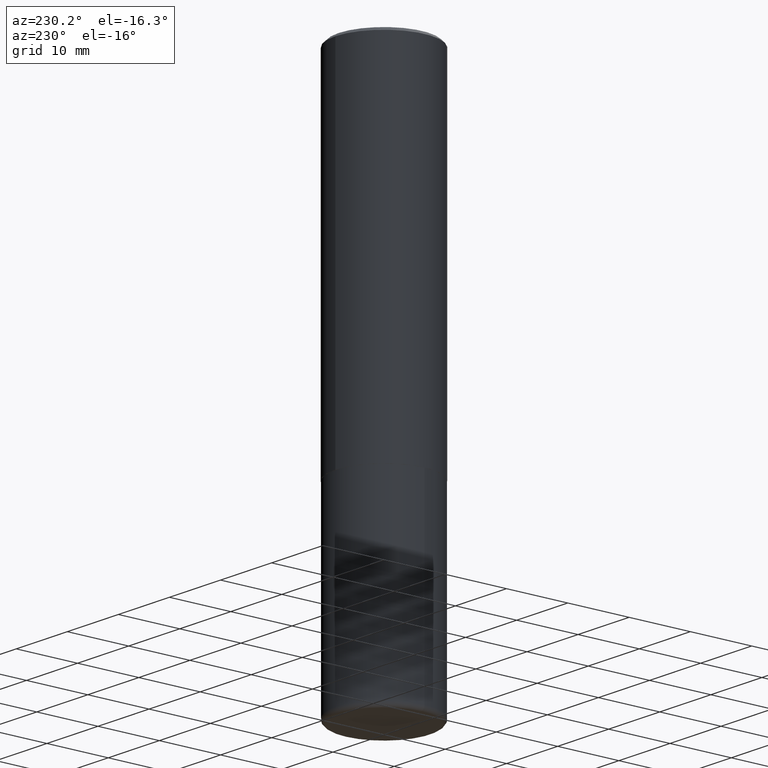
[diagram: clean part render]
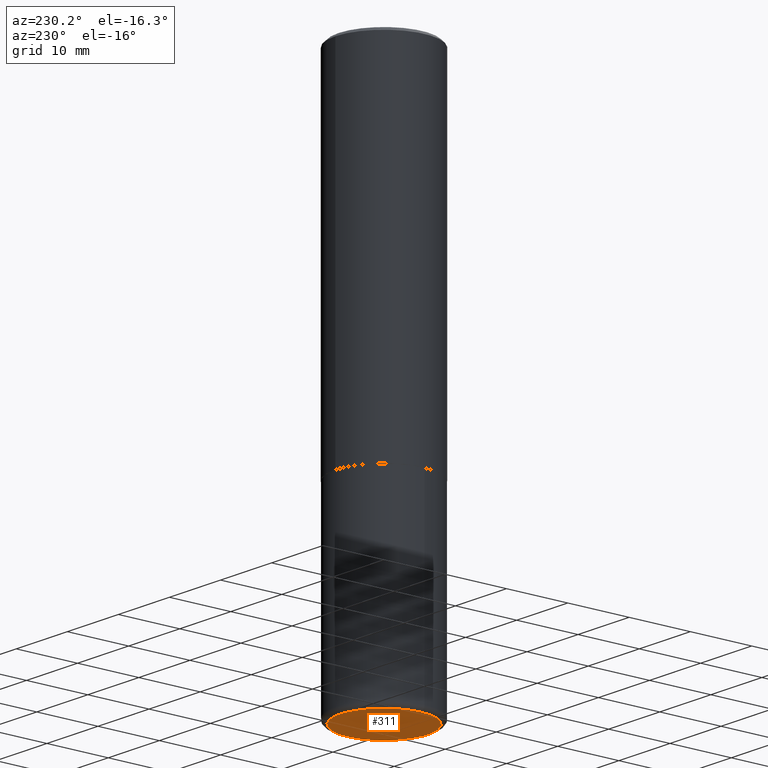
[diagram: same view with one face highlighted and labeled with its STEP entity id]
A machine part, auxiliary view. The second image highlights one B-rep face of the part: STEP entity #311.
In plain terms, the highlighted planar face has unit normal (0, -0, -1).
Its self-contained STEP definition (entity closure, byte-faithful):
#4 = CARTESIAN_POINT ( 'NONE',  ( 0.2824999999999999734, -1.419287164239738095E-14, -3.500000000000000444 ) ) ;
#12 = DIRECTION ( 'NONE',  ( 1.000000000000000000, -6.982962677686270655E-15, 0.000000000000000000 ) ) ;
#25 = CARTESIAN_POINT ( 'NONE',  ( 3.832247084795318978E-29, -1.898936555520759464E-14, -3.500000000000000444 ) ) ;
#47 = CARTESIAN_POINT ( 'NONE',  ( 8.559140821647978089E-29, -1.222018468595101092E-14, -3.500000000000000444 ) ) ;
#63 = DIRECTION ( 'NONE',  ( 2.438088387897960049E-29, -3.491481338843145188E-15, -1.000000000000000000 ) ) ;
#89 = DIRECTION ( 'NONE',  ( -1.000000000000000000, 6.982962677686265922E-15, -4.876176775795935793E-29 ) ) ;
#103 = CIRCLE ( 'NONE', #414, 0.2824999999999999734 ) ;
#124 = VERTEX_POINT ( 'NONE', #4 ) ;
#126 = PLANE ( 'NONE',  #246 ) ;
#127 = VERTEX_POINT ( 'NONE', #135 ) ;
#135 = CARTESIAN_POINT ( 'NONE',  ( -0.2824999999999999734, -1.005394782698206391E-14, -3.500000000000000444 ) ) ;
#178 = DIRECTION ( 'NONE',  ( -2.445468806185136597E-29, 3.491481338843145583E-15, 1.000000000000000000 ) ) ;
#182 = ORIENTED_EDGE ( 'NONE', *, *, #258, .F. ) ;
#189 = FACE_OUTER_BOUND ( 'NONE', #260, .T. ) ;
#218 = AXIS2_PLACEMENT_3D ( 'NONE', #286, #281, #379 ) ;
#246 = AXIS2_PLACEMENT_3D ( 'NONE', #25, #63, #89 ) ;
#255 = CIRCLE ( 'NONE', #218, 0.2824999999999999734 ) ;
#258 = EDGE_CURVE ( 'NONE', #124, #127, #103, .T. ) ;
#260 = EDGE_LOOP ( 'NONE', ( #182, #384 ) ) ;
#281 = DIRECTION ( 'NONE',  ( -2.445468806185136597E-29, 3.491481338843145583E-15, 1.000000000000000000 ) ) ;
#286 = CARTESIAN_POINT ( 'NONE',  ( 8.559140821647978089E-29, -1.222018468595101092E-14, -3.500000000000000444 ) ) ;
#311 = ADVANCED_FACE ( 'NONE', ( #189 ), #126, .T. ) ;
#345 = EDGE_CURVE ( 'NONE', #127, #124, #255, .T. ) ;
#379 = DIRECTION ( 'NONE',  ( 1.000000000000000000, -6.982962677686270655E-15, 0.000000000000000000 ) ) ;
#384 = ORIENTED_EDGE ( 'NONE', *, *, #345, .F. ) ;
#414 = AXIS2_PLACEMENT_3D ( 'NONE', #47, #178, #12 ) ;